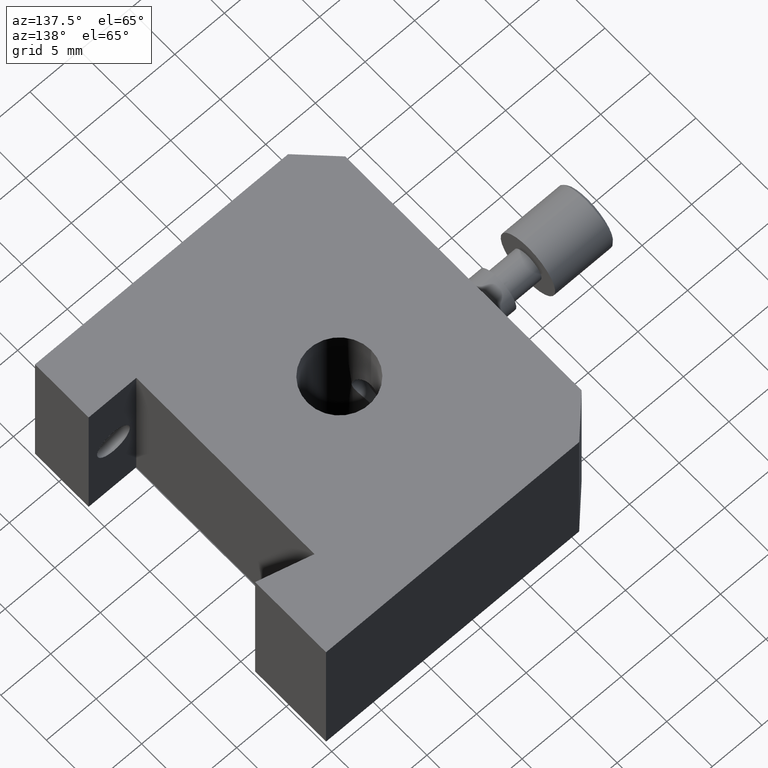
[diagram: clean part render]
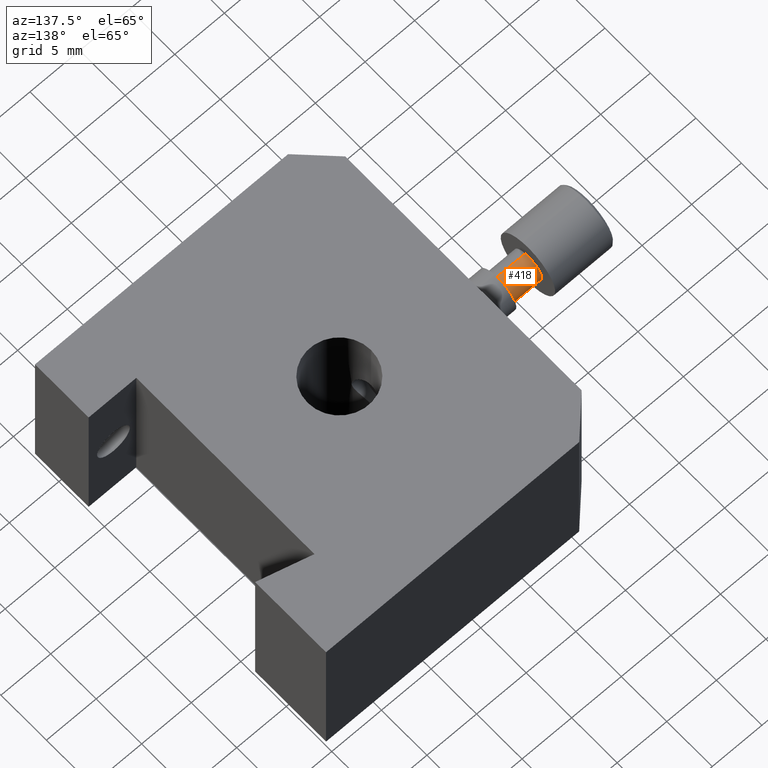
[diagram: same view with one face highlighted and labeled with its STEP entity id]
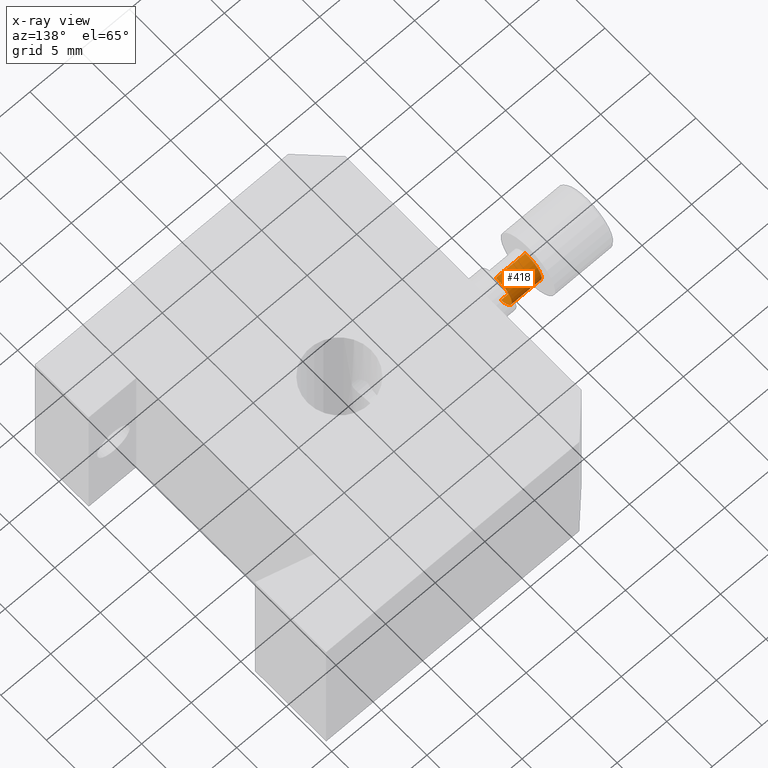
[diagram: x-ray of the same camera — body ghosted, the highlighted face saturated]
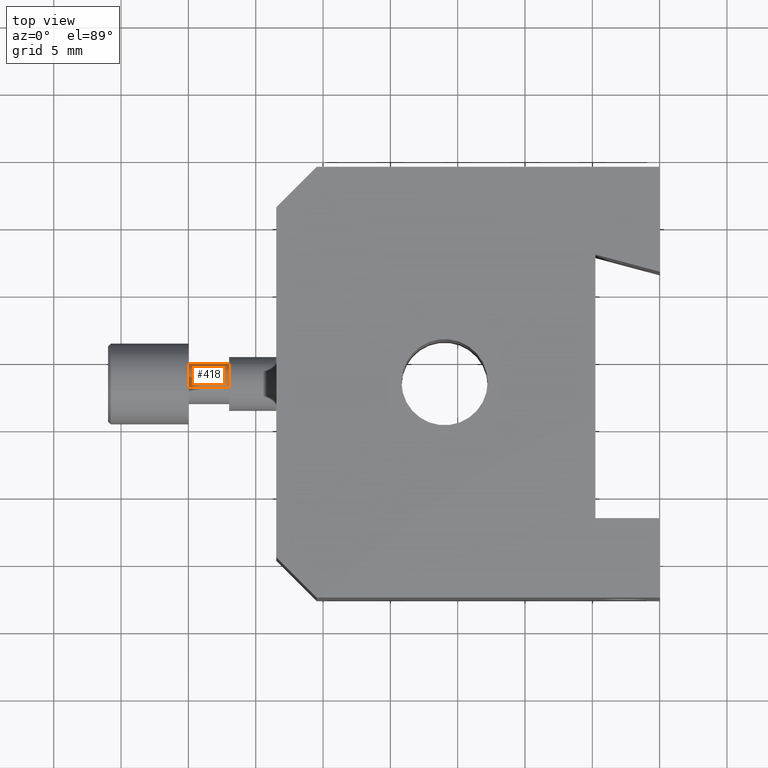
[diagram: same view with one face highlighted and labeled with its STEP entity id]
A machine part, auxiliary view. The second image highlights one B-rep face of the part: STEP entity #418.
The next image is the same camera in x-ray: the body ghosted, the highlighted face saturated — about 0% of this face is hidden behind the body in this view.
A second angle (top view) of the same face is appended — the face is thin or edge-on in the first view.
In plain terms, the highlighted cylindrical surface (edge-blend (fillet) strip) has radius 1.5 mm, axis along (1, 0, -0).
Its self-contained STEP definition (entity closure, byte-faithful):
#63 = DIRECTION ( 'NONE',  ( 0.0000000000000000000, 0.1960853106169124500, -0.9805868400913143600 ) ) ;
#107 = CARTESIAN_POINT ( 'NONE',  ( -21.97105950749486100, -1.893927990922026100, 33.47088026013697300 ) ) ;
#117 = CARTESIAN_POINT ( 'NONE',  ( -24.97105950749486100, -1.893927990922026100, 33.47088026013697300 ) ) ;
#121 = EDGE_CURVE ( 'NONE', #860, #759, #648, .T. ) ;
#130 = ORIENTED_EDGE ( 'NONE', *, *, #349, .F. ) ;
#135 = VERTEX_POINT ( 'NONE', #417 ) ;
#178 = AXIS2_PLACEMENT_3D ( 'NONE', #211, #750, #296 ) ;
#210 = AXIS2_PLACEMENT_3D ( 'NONE', #303, #827, #384 ) ;
#211 = CARTESIAN_POINT ( 'NONE',  ( -21.97105950749486100, -1.599800024996657100, 32.00000000000000700 ) ) ;
#279 = AXIS2_PLACEMENT_3D ( 'NONE', #387, #756, #63 ) ;
#296 = DIRECTION ( 'NONE',  ( 0.0000000000000000000, -0.1960853106169128900, 0.9805868400913142500 ) ) ;
#303 = CARTESIAN_POINT ( 'NONE',  ( -24.97105950749486100, -1.599800024996657100, 32.00000000000000700 ) ) ;
#333 = EDGE_CURVE ( 'NONE', #883, #135, #840, .T. ) ;
#335 = EDGE_CURVE ( 'NONE', #759, #135, #459, .T. ) ;
#349 = EDGE_CURVE ( 'NONE', #860, #883, #812, .T. ) ;
#372 = CYLINDRICAL_SURFACE ( 'NONE', #279, 1.500000000000000200 ) ;
#377 = CARTESIAN_POINT ( 'NONE',  ( -24.97105950749486100, -1.305672059071288200, 30.52911973986303500 ) ) ;
#384 = DIRECTION ( 'NONE',  ( 0.0000000000000000000, -0.1960853106169128900, 0.9805868400913142500 ) ) ;
#387 = CARTESIAN_POINT ( 'NONE',  ( -24.97105950749486100, -1.599800024996657100, 32.00000000000000700 ) ) ;
#394 = FACE_OUTER_BOUND ( 'NONE', #620, .T. ) ;
#417 = CARTESIAN_POINT ( 'NONE',  ( -21.97105950749486100, -1.305672059071288200, 30.52911973986303500 ) ) ;
#418 = ADVANCED_FACE ( 'NONE', ( #394 ), #372, .T. ) ;
#430 = VECTOR ( 'NONE', #745, 1000.000000000000000 ) ;
#459 = CIRCLE ( 'NONE', #178, 1.499999999999996900 ) ;
#568 = DIRECTION ( 'NONE',  ( 1.000000000000000000, 0.0000000000000000000, -0.0000000000000000000 ) ) ;
#620 = EDGE_LOOP ( 'NONE', ( #130, #837, #743, #706 ) ) ;
#648 = LINE ( 'NONE', #878, #809 ) ;
#663 = CARTESIAN_POINT ( 'NONE',  ( -24.97105950749486100, -1.305672059071288200, 30.52911973986303500 ) ) ;
#706 = ORIENTED_EDGE ( 'NONE', *, *, #333, .F. ) ;
#743 = ORIENTED_EDGE ( 'NONE', *, *, #335, .T. ) ;
#745 = DIRECTION ( 'NONE',  ( 1.000000000000000000, 0.0000000000000000000, -0.0000000000000000000 ) ) ;
#750 = DIRECTION ( 'NONE',  ( -1.000000000000000000, 0.0000000000000000000, 0.0000000000000000000 ) ) ;
#756 = DIRECTION ( 'NONE',  ( 1.000000000000000000, 0.0000000000000000000, -0.0000000000000000000 ) ) ;
#759 = VERTEX_POINT ( 'NONE', #107 ) ;
#809 = VECTOR ( 'NONE', #568, 1000.000000000000000 ) ;
#812 = CIRCLE ( 'NONE', #210, 1.499999999999996900 ) ;
#827 = DIRECTION ( 'NONE',  ( -1.000000000000000000, 0.0000000000000000000, 0.0000000000000000000 ) ) ;
#837 = ORIENTED_EDGE ( 'NONE', *, *, #121, .T. ) ;
#840 = LINE ( 'NONE', #377, #430 ) ;
#860 = VERTEX_POINT ( 'NONE', #117 ) ;
#878 = CARTESIAN_POINT ( 'NONE',  ( -24.97105950749486100, -1.893927990922025500, 33.47088026013697300 ) ) ;
#883 = VERTEX_POINT ( 'NONE', #663 ) ;